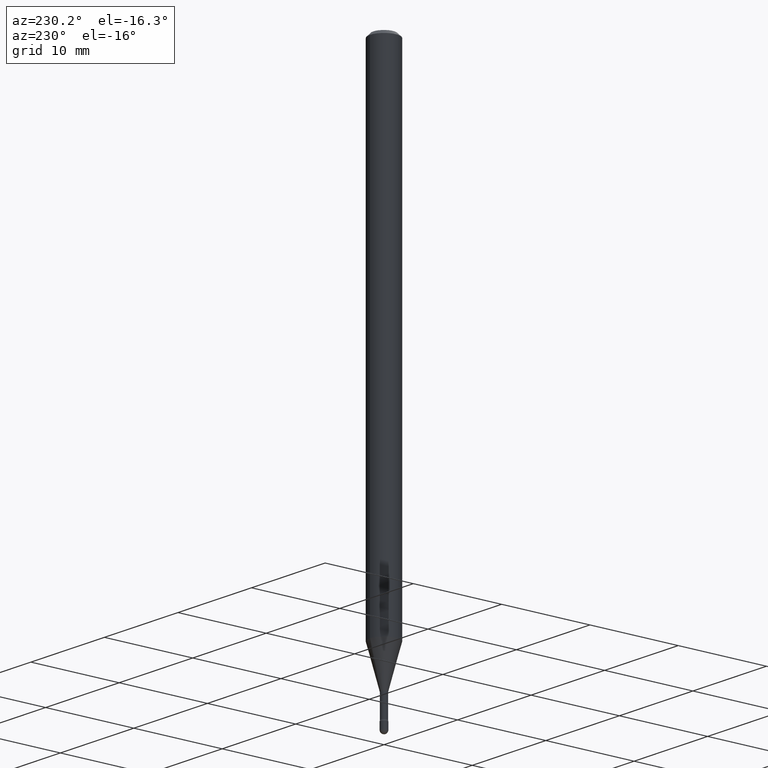
[diagram: clean part render]
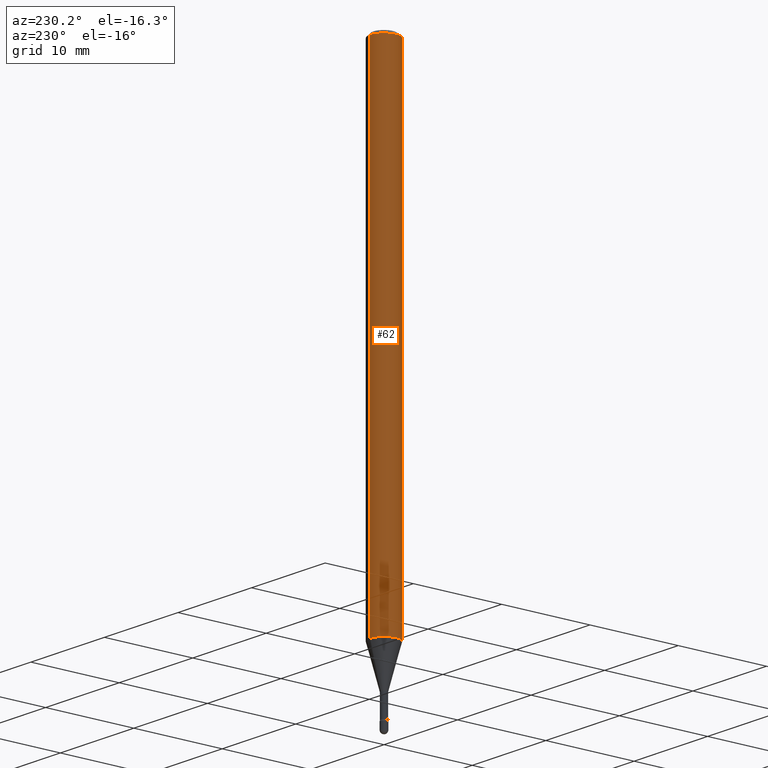
[diagram: same view with one face highlighted and labeled with its STEP entity id]
A machine part, auxiliary view. The second image highlights one B-rep face of the part: STEP entity #62.
In plain terms, the highlighted cylindrical surface (edge-blend (fillet) strip) has radius 1.5875 mm, axis along (-0, 0, 1).
Its self-contained STEP definition (entity closure, byte-faithful):
#3 = DIRECTION ( 'NONE',  ( -6.982962677686265922E-15, -1.000000000000000000, 4.370956789862821150E-15 ) ) ;
#46 = VERTEX_POINT ( 'NONE', #120 ) ;
#62 = ADVANCED_FACE ( 'NONE', ( #299 ), #248, .T. ) ;
#111 = DIRECTION ( 'NONE',  ( -6.982962677686265922E-15, -1.000000000000000000, 3.491549418961497960E-15 ) ) ;
#120 = CARTESIAN_POINT ( 'NONE',  ( -4.364351673553385199E-16, -0.06250000000000757727, -2.169368740913666826 ) ) ;
#136 = ORIENTED_EDGE ( 'NONE', *, *, #201, .F. ) ;
#152 = CARTESIAN_POINT ( 'NONE',  ( -4.364351673553916201E-16, -0.06250000000000000000, 6.962952375763397104E-16 ) ) ;
#159 = CIRCLE ( 'NONE', #474, 0.06250000000000000000 ) ;
#164 = CARTESIAN_POINT ( 'NONE',  ( 4.440892098500625669E-16, 0.06250000000000000000, 2.598515602061524161E-16 ) ) ;
#177 = VERTEX_POINT ( 'NONE', #369 ) ;
#179 = EDGE_CURVE ( 'NONE', #46, #350, #424, .T. ) ;
#183 = ORIENTED_EDGE ( 'NONE', *, *, #179, .T. ) ;
#191 = CARTESIAN_POINT ( 'NONE',  ( 4.440892098501160615E-16, 0.06249999999999995837, -0.01500000000000030129 ) ) ;
#201 = EDGE_CURVE ( 'NONE', #441, #350, #159, .T. ) ;
#203 = DIRECTION ( 'NONE',  ( -2.445421266092581423E-29, 3.491549418961498749E-15, 1.000000000000000000 ) ) ;
#212 = CARTESIAN_POINT ( 'NONE',  ( -1.169113584055446105E-44, 1.669184350826100908E-30, 4.780733988912460139E-16 ) ) ;
#215 = EDGE_CURVE ( 'NONE', #177, #46, #377, .T. ) ;
#230 = EDGE_CURVE ( 'NONE', #177, #441, #557, .T. ) ;
#231 = VECTOR ( 'NONE', #546, 39.37007874015748143 ) ;
#248 = CYLINDRICAL_SURFACE ( 'NONE', #315, 0.06250000000000000000 ) ;
#255 = ORIENTED_EDGE ( 'NONE', *, *, #215, .T. ) ;
#297 = ORIENTED_EDGE ( 'NONE', *, *, #230, .F. ) ;
#299 = FACE_OUTER_BOUND ( 'NONE', #447, .T. ) ;
#315 = AXIS2_PLACEMENT_3D ( 'NONE', #212, #417, #111 ) ;
#330 = CARTESIAN_POINT ( 'NONE',  ( 3.668131899138892453E-31, -5.237324128442276818E-17, -0.01500000000000008271 ) ) ;
#350 = VERTEX_POINT ( 'NONE', #538 ) ;
#359 = AXIS2_PLACEMENT_3D ( 'NONE', #552, #481, #3 ) ;
#369 = CARTESIAN_POINT ( 'NONE',  ( 4.440892098501154699E-16, 0.06249999999999240885, -2.169368740913667271 ) ) ;
#377 = CIRCLE ( 'NONE', #359, 0.06250000000000000000 ) ;
#411 = VECTOR ( 'NONE', #203, 39.37007874015748143 ) ;
#417 = DIRECTION ( 'NONE',  ( -2.445421266092581423E-29, 3.491549418961498749E-15, 1.000000000000000000 ) ) ;
#424 = LINE ( 'NONE', #152, #411 ) ;
#441 = VERTEX_POINT ( 'NONE', #191 ) ;
#447 = EDGE_LOOP ( 'NONE', ( #297, #255, #183, #136 ) ) ;
#462 = DIRECTION ( 'NONE',  ( -6.982962677686265922E-15, -1.000000000000000000, 3.483106191921935554E-15 ) ) ;
#474 = AXIS2_PLACEMENT_3D ( 'NONE', #330, #502, #462 ) ;
#481 = DIRECTION ( 'NONE',  ( -2.445421266092581423E-29, 3.491549418961498749E-15, 1.000000000000000000 ) ) ;
#502 = DIRECTION ( 'NONE',  ( -2.445421266092581423E-29, 3.491549418961498749E-15, 1.000000000000000000 ) ) ;
#538 = CARTESIAN_POINT ( 'NONE',  ( -4.364351673553912750E-16, -0.06250000000000005551, -0.01499999999999986587 ) ) ;
#546 = DIRECTION ( 'NONE',  ( -2.445421266092581423E-29, 3.491549418961498749E-15, 1.000000000000000000 ) ) ;
#552 = CARTESIAN_POINT ( 'NONE',  ( 5.305020453026768105E-29, -7.574458166850352886E-15, -2.169368740913666826 ) ) ;
#557 = LINE ( 'NONE', #164, #231 ) ;